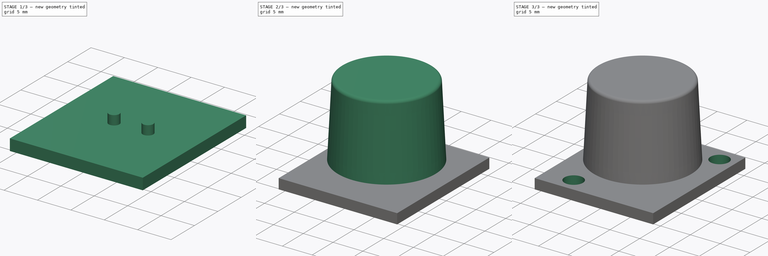
[diagram: build sequence overview — one tinted view per stage of 3, left to right]
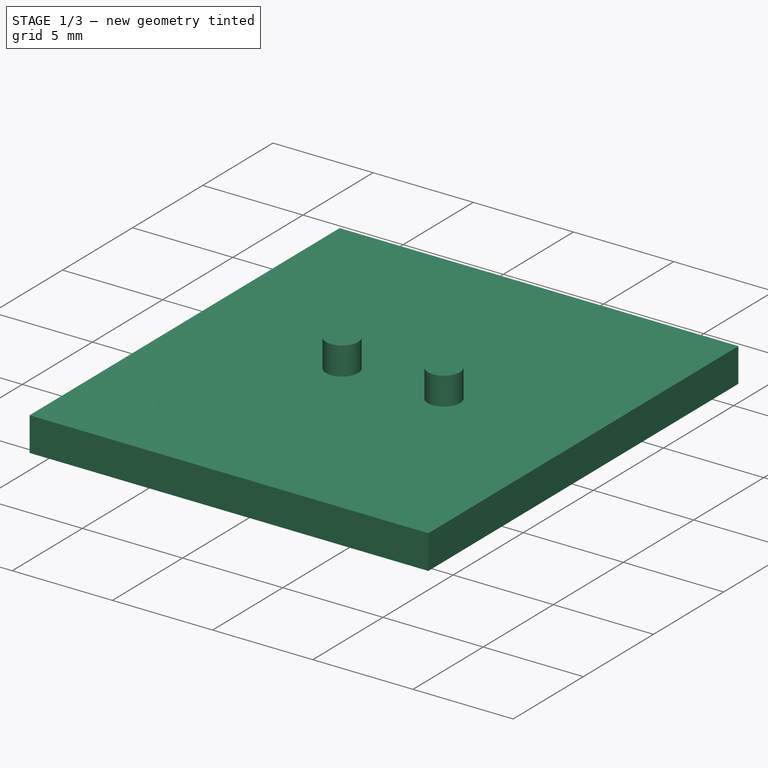
[diagram: stage 1 of 3 — iso view after this stage's code; geometry added in this stage tinted green]
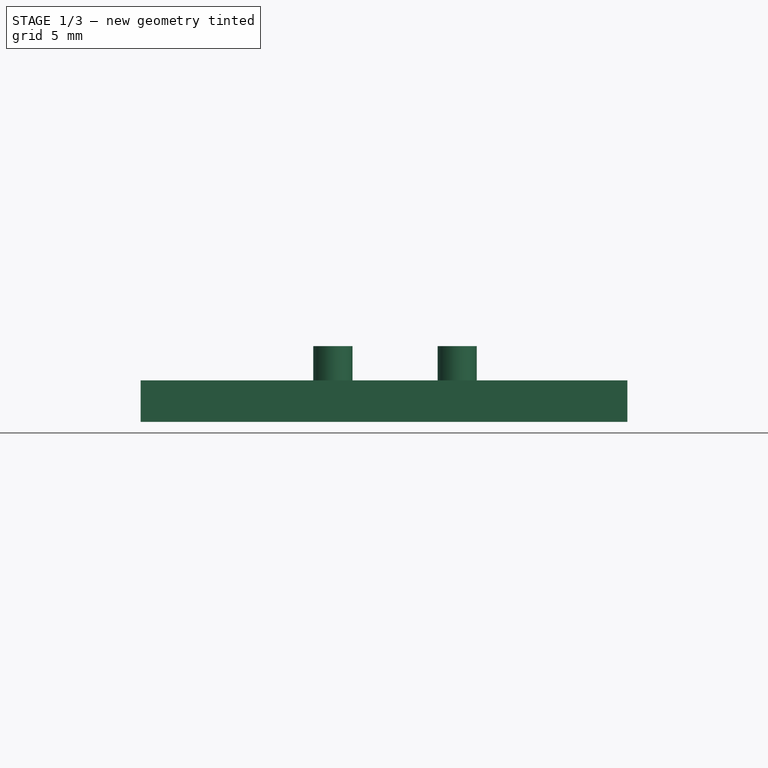
[diagram: stage 1 of 3 — front view after this stage's code; geometry added in this stage tinted green]
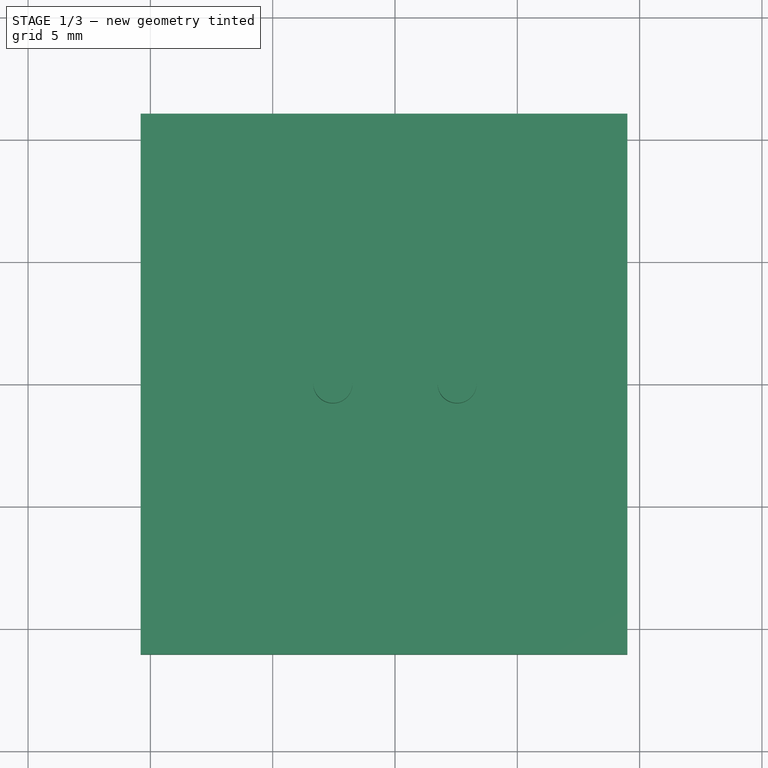
[diagram: stage 1 of 3 — top view after this stage's code; geometry added in this stage tinted green]
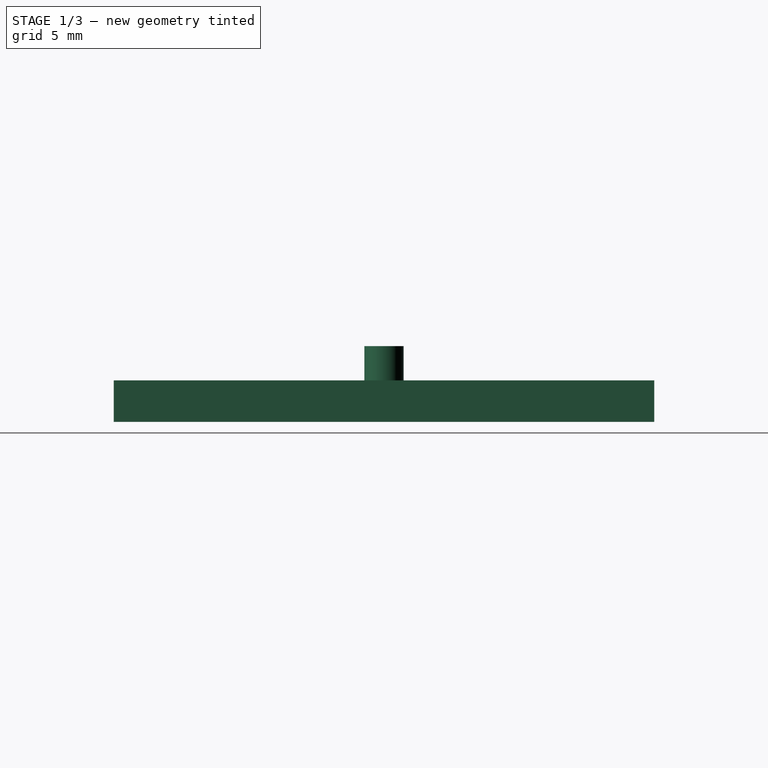
[diagram: stage 1 of 3 — right view after this stage's code; geometry added in this stage tinted green]
FCSTD DOCUMENT  (FreeCAD 0.16R6039 (Git))
Label: MaxSonar-MB1010
License: All rights reserved
LicenseURL: http://en.wikipedia.org/wiki/All_rights_reserved
objects: Sketcher::SketchObject×4, PartDesign::Pad×2, PartDesign::Revolution×1, Part::Fuse×1, PartDesign::Pocket×1
note: 13 computed .brp shape members not serialized (recipe doc carries the construction recipe); baked Part::Feature solids carry a one-line shape summary decoded from their .brp

FEATURE [Sketcher::SketchObject] Sketch
  sketch-geometry (4):
    g0: LineSegment StartX=-10.4 StartY=11.05 StartZ=0 EndX=9.5 EndY=11.05 EndZ=0
    g1: LineSegment StartX=9.5 StartY=11.05 StartZ=0 EndX=9.5 EndY=-11.05 EndZ=0
    g2: LineSegment StartX=9.5 StartY=-11.05 StartZ=0 EndX=-10.4 EndY=-11.05 EndZ=0
    g3: LineSegment StartX=-10.4 StartY=-11.05 StartZ=0 EndX=-10.4 EndY=11.05 EndZ=0
  constraints (12):
    c: Coincident(g0,g1)
    c: Coincident(g1,g2)
    c: Coincident(g2,g3)
    c: Coincident(g3,g0)
    c: Horizontal(g0)
    c: Horizontal(g2)
    c: Vertical(g1)
    c: Vertical(g3)
    c: DistanceX(g0) = 19.9
    c: DistanceY(g1) = -22.1
    c: DistanceX(g0) = 9.5
    c: DistanceY(g0) = 11.05
FEATURE [PartDesign::Pad] Pad
  Length = 1.7
  Length2 = 100
  Sketch = -> Sketch
  Type = 0
FEATURE [Sketcher::SketchObject] Sketch002
  Placement = pos=(0,0,1.7) rot=(0,0,1;0rad)
  Support = -> Pad [Face6]
  sketch-geometry (2):
    g0: Circle CenterX=-2.54 CenterY=0 CenterZ=0 NormalX=0 NormalY=0 NormalZ=1 Radius=0.8
    g1: Circle CenterX=2.54 CenterY=0 CenterZ=0 NormalX=0 NormalY=0 NormalZ=1 Radius=0.8
  constraints (6):
    c: PointOnObject(g0,g-1)
    c: PointOnObject(g1,g-1)
    c: Radius(g0) = 0.8
    c: Equal(g0,g1)
    c: DistanceX(g1,g0) = -5.08
    c: DistanceX(g1) = 2.54
FEATURE [PartDesign::Pad] Pad001
  Length = 1.4
  Length2 = 100
  Sketch = -> Sketch002
  Type = 0
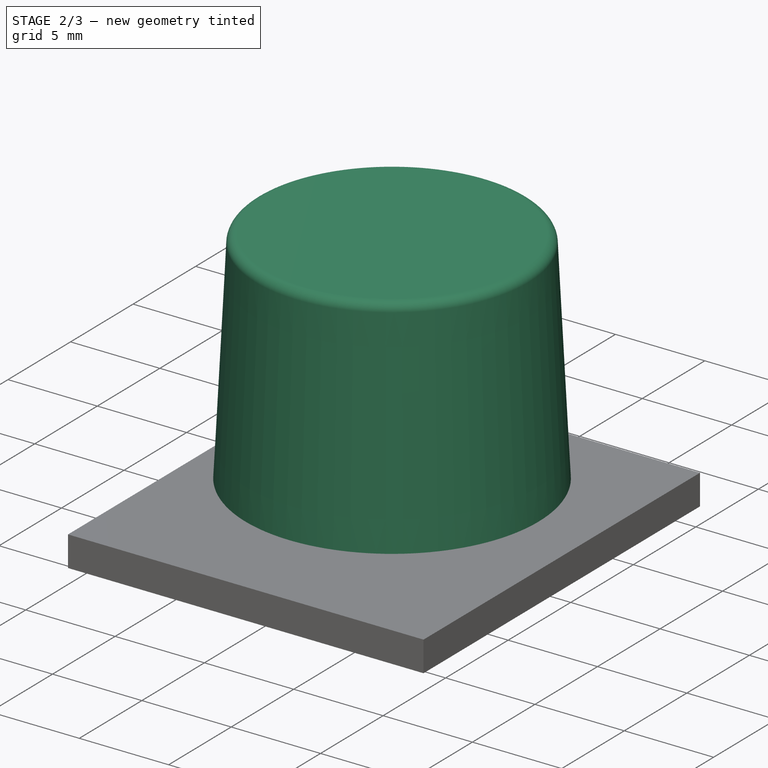
[diagram: stage 2 of 3 — iso view after this stage's code; geometry added in this stage tinted green]
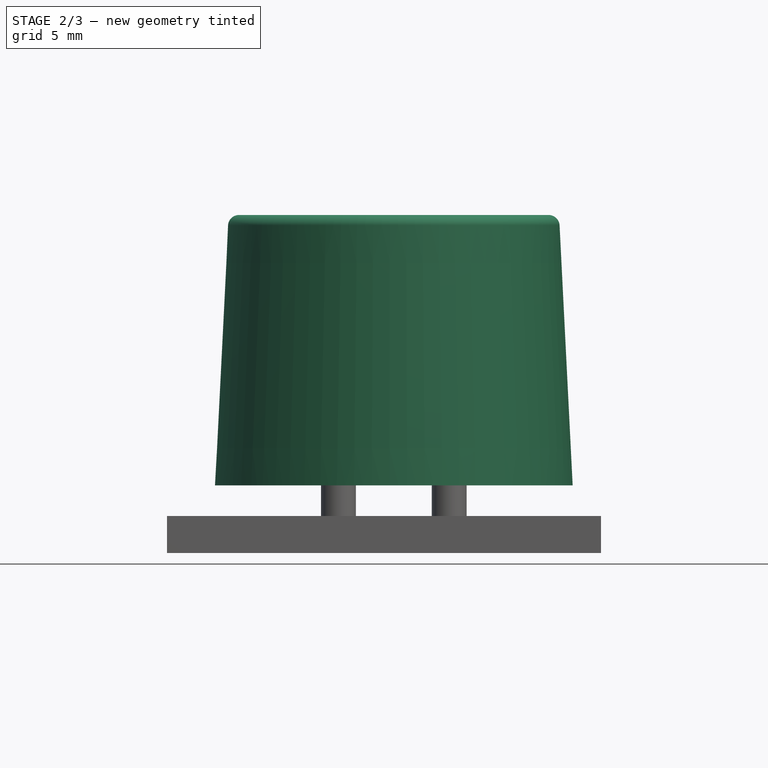
[diagram: stage 2 of 3 — front view after this stage's code; geometry added in this stage tinted green]
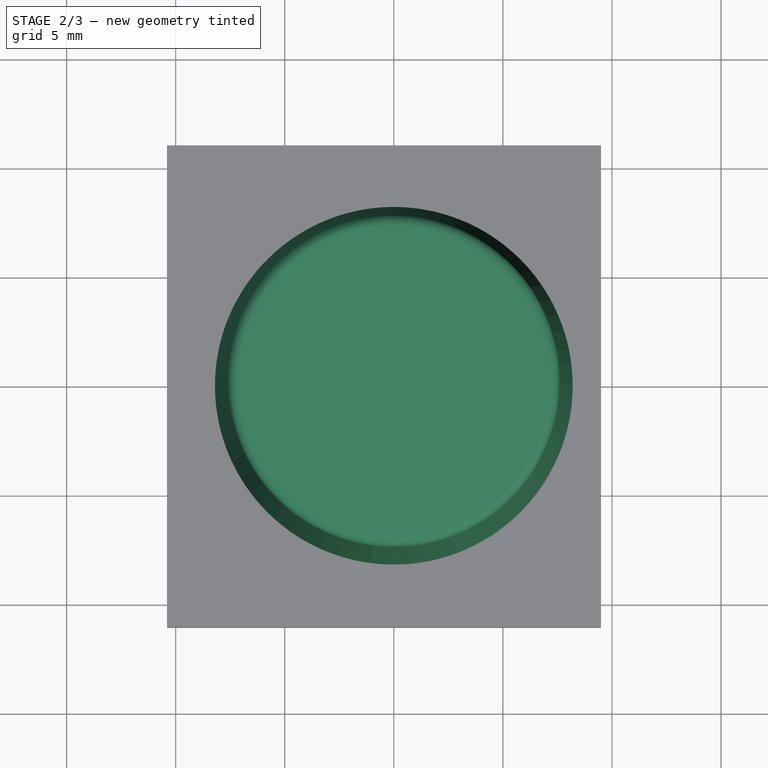
[diagram: stage 2 of 3 — top view after this stage's code; geometry added in this stage tinted green]
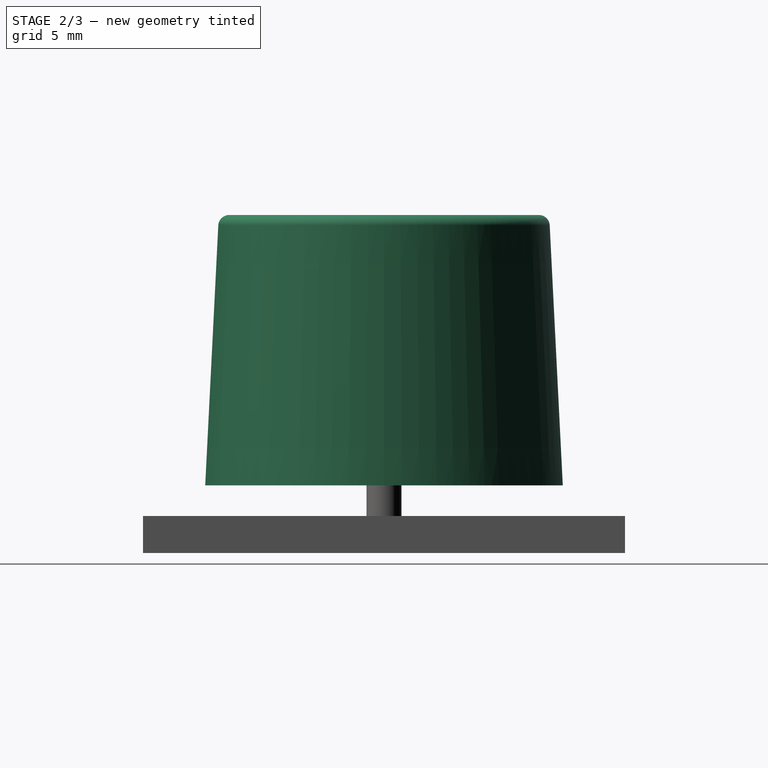
[diagram: stage 2 of 3 — right view after this stage's code; geometry added in this stage tinted green]
FEATURE [Sketcher::SketchObject] Sketch001
  Placement = pos=(0,0,0) rot=(-1,0,0;4.71239rad)
  sketch-geometry (5):
    g0: LineSegment StartX=0 StartY=15.5 StartZ=0 EndX=7.10063 EndY=15.5 EndZ=0
    g1: LineSegment StartX=7.6 StartY=15.0251 StartZ=0 EndX=8.2 EndY=3.1 EndZ=0
    g2: LineSegment StartX=8.2 StartY=3.1 StartZ=0 EndX=0 EndY=3.1 EndZ=0
    g3: LineSegment StartX=0 StartY=3.1 StartZ=0 EndX=0 EndY=15.5 EndZ=0
    g4: ArcOfCircle CenterX=7.10063 CenterY=15 CenterZ=0 NormalX=0 NormalY=0 NormalZ=1 Radius=0.5 StartAngle=0.0502715 EndAngle=1.5708
  constraints (14):
    c: Coincident(g1,g2)
    c: Coincident(g2,g3)
    c: Coincident(g3,g0)
    c: Horizontal(g0)
    c: Horizontal(g2)
    c: Vertical(g3)
    c: PointOnObject(g2,g-2)
    c: DistanceY(g3) = 12.4
    c: DistanceX(g1) = 8.2
    c: Tangent(g0,g4) = 1.5708
    c: Tangent(g1,g4) = 1.5708
    c: DistanceY(g0) = 15.5
    c: DistanceX(g1) = 7.6
    c: Radius(g4) = 0.5
FEATURE [PartDesign::Revolution] Revolution
  Angle = 360
  Axis = (0,0,1)
  Base = (0,0,0)
  Placement = pos=(0,0,0) rot=(-1,0,0;4.71239rad)
  ReferenceAxis = -> Sketch001 [V_Axis]
  Reversed = true
  Sketch = -> Sketch001
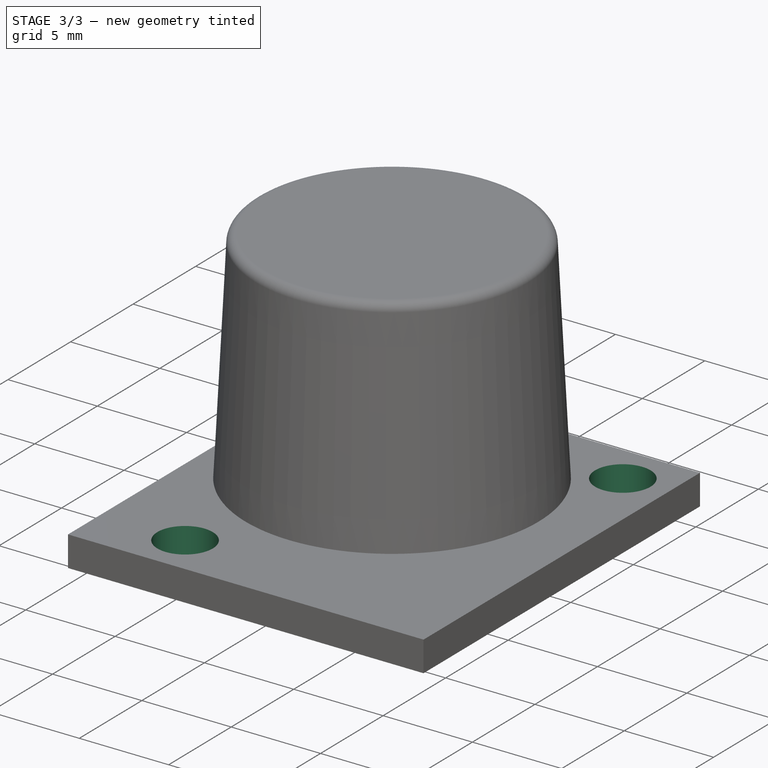
[diagram: stage 3 of 3 — iso view after this stage's code; geometry added in this stage tinted green]
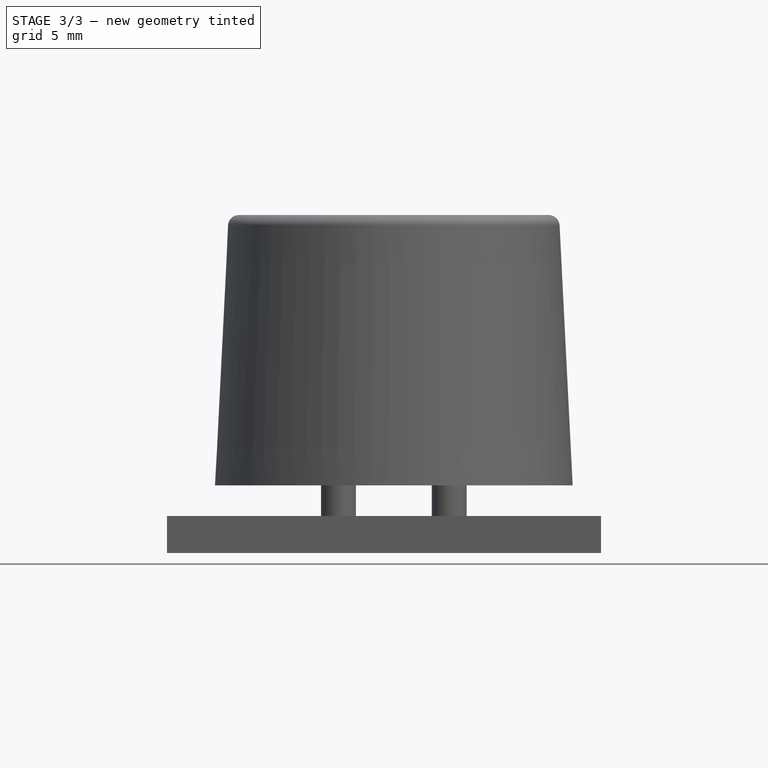
[diagram: stage 3 of 3 — front view after this stage's code; geometry added in this stage tinted green]
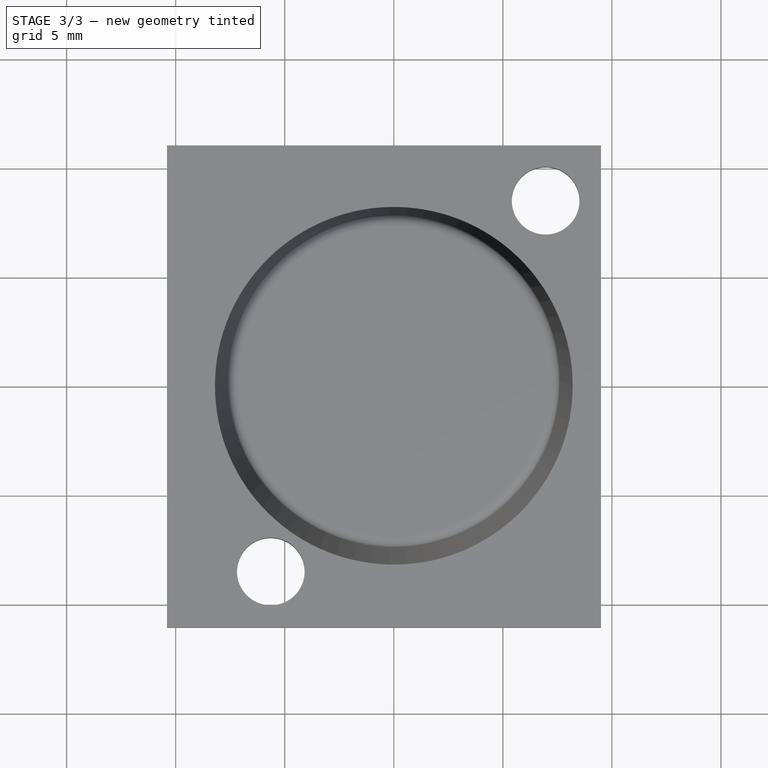
[diagram: stage 3 of 3 — top view after this stage's code; geometry added in this stage tinted green]
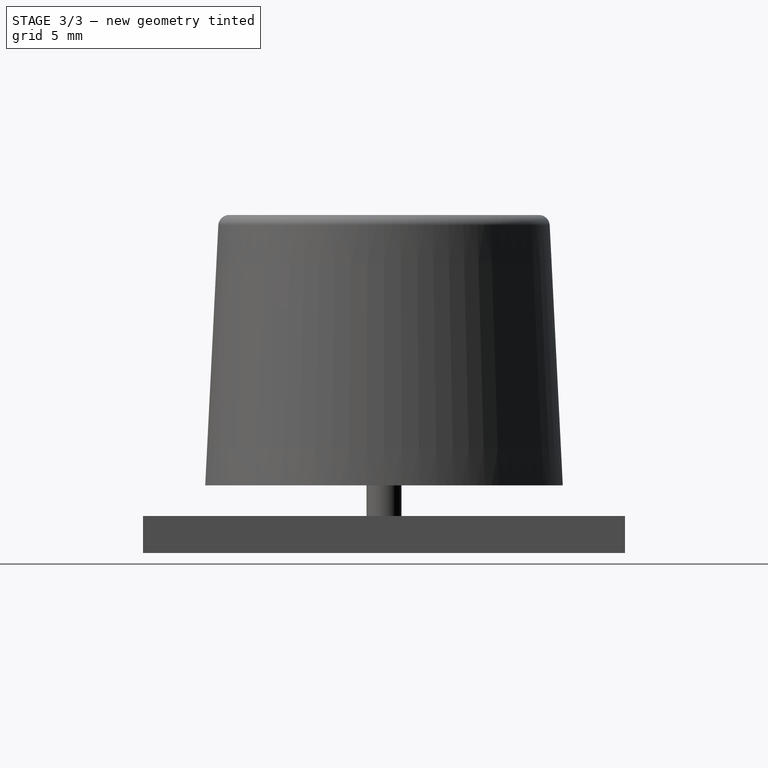
[diagram: stage 3 of 3 — right view after this stage's code; geometry added in this stage tinted green]
FEATURE [Part::Fuse] Fusion
  Base = -> Revolution
  Tool = -> Pad001
FEATURE [Sketcher::SketchObject] Sketch003
  Placement = pos=(0,0,1.7) rot=(0,0,1;0rad)
  Support = -> Fusion [Face7]
  sketch-geometry (6):
    g0: LineSegment [constr] StartX=-5.64 StartY=8.51 StartZ=0 EndX=6.96 EndY=8.51 EndZ=0
    g1: LineSegment [constr] StartX=6.96 StartY=8.51 StartZ=0 EndX=6.96 EndY=-8.49 EndZ=0
    g2: LineSegment [constr] StartX=6.96 StartY=-8.49 StartZ=0 EndX=-5.64 EndY=-8.49 EndZ=0
    g3: LineSegment [constr] StartX=-5.64 StartY=-8.49 StartZ=0 EndX=-5.64 EndY=8.51 EndZ=0
    g4: Circle CenterX=6.96 CenterY=8.51 CenterZ=0 NormalX=0 NormalY=0 NormalZ=1 Radius=1.55
    g5: Circle CenterX=-5.64 CenterY=-8.49 CenterZ=0 NormalX=0 NormalY=0 NormalZ=1 Radius=1.55
  constraints (16):
    c: Coincident(g0,g1)
    c: Coincident(g1,g2)
    c: Coincident(g2,g3)
    c: Coincident(g3,g0)
    c: Horizontal(g0)
    c: Horizontal(g2)
    c: Vertical(g1)
    c: Vertical(g3)
    c: Coincident(g4,g0)
    c: Coincident(g5,g2)
    c: Radius(g5) = 1.55
    c: Equal(g5,g4)
    c: DistanceX(g0) = 6.96
    c: DistanceY(g0) = 8.51
    c: DistanceY(g1) = -17
    c: DistanceX(g0) = 12.6
FEATURE [PartDesign::Pocket] Pocket
  Length = 1.7
  Sketch = -> Sketch003
  Type = 0
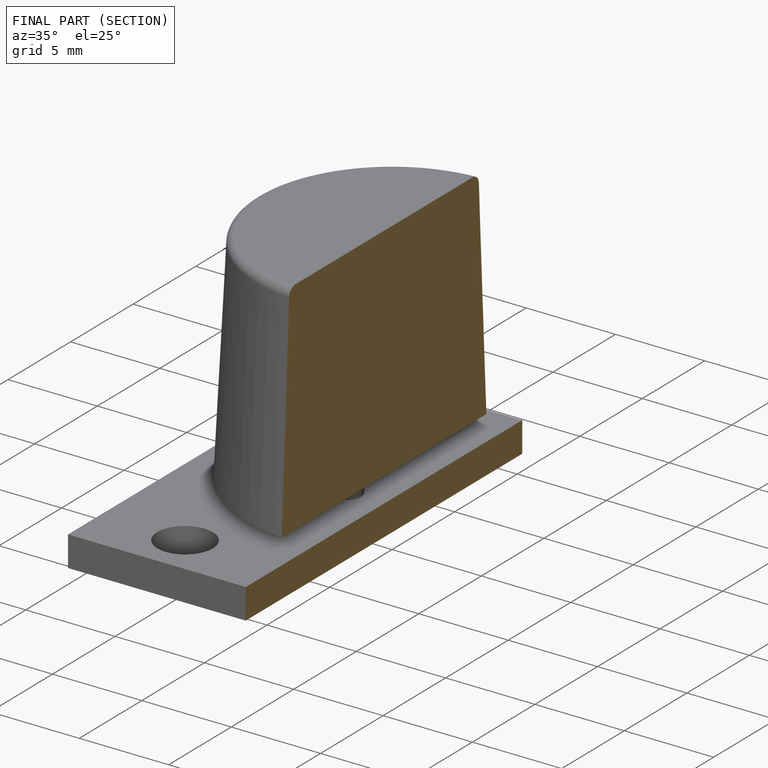
[diagram: finished part — half-section view (interior)]
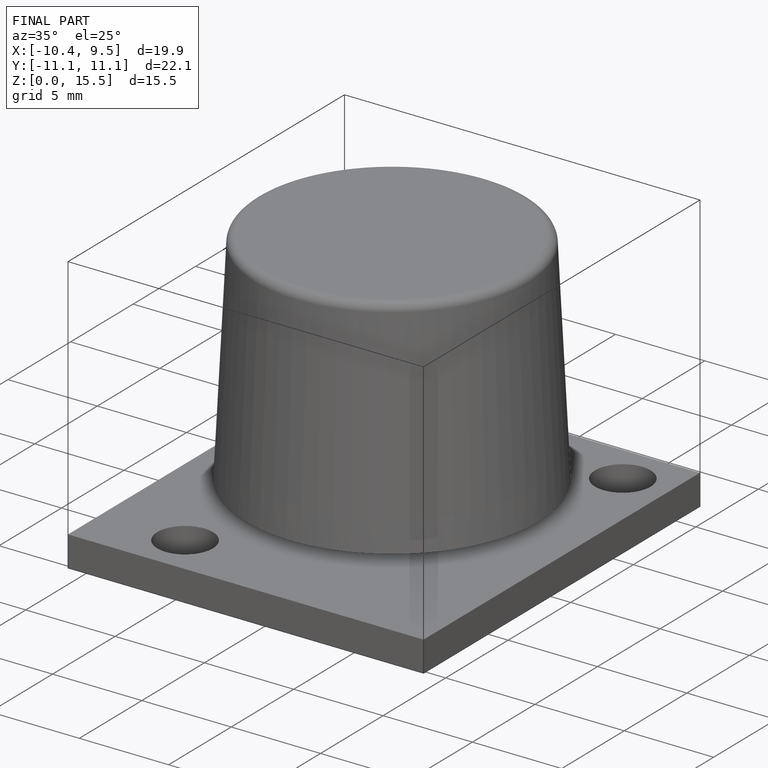
[diagram: finished part — iso view with bounding-box wireframe]
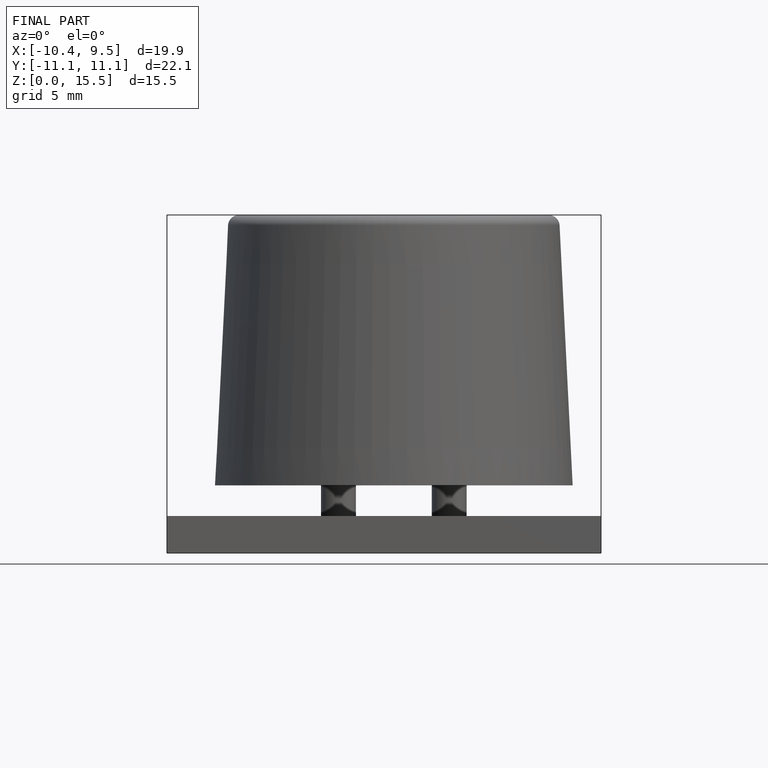
[diagram: finished part — front view with bounding-box wireframe]
